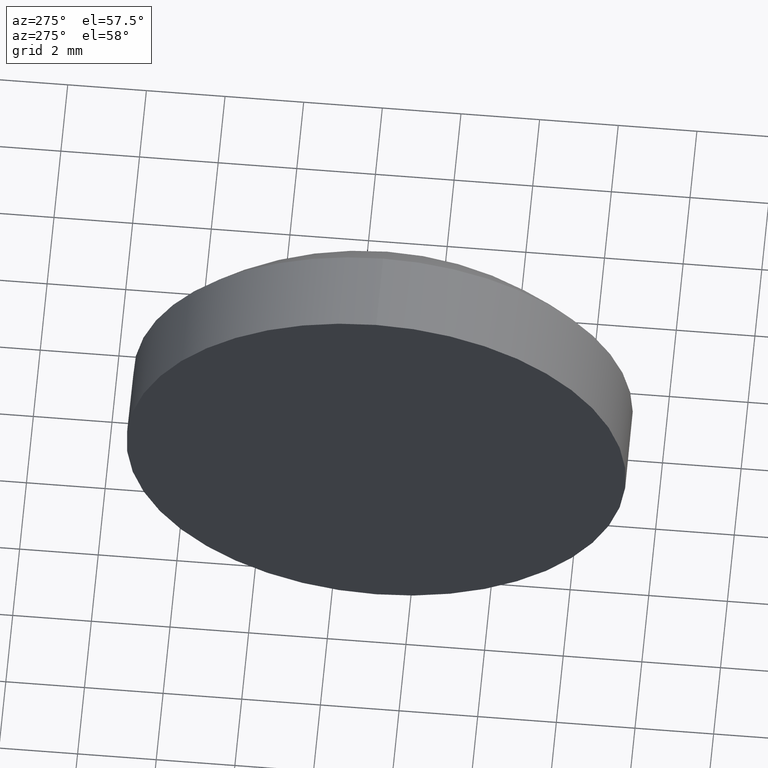
[diagram: clean part render]
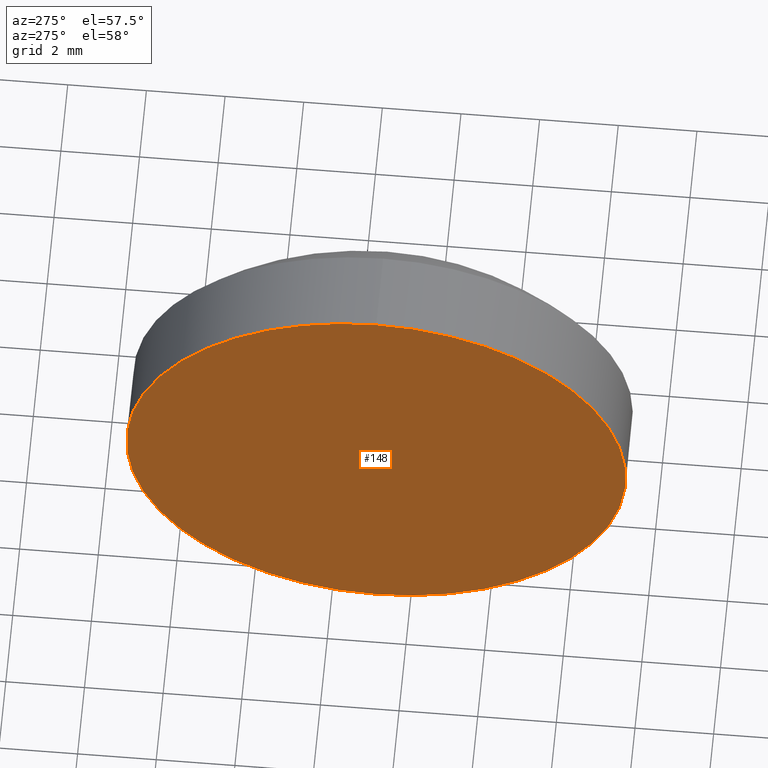
[diagram: same view with one face highlighted and labeled with its STEP entity id]
A machine part, auxiliary view. The second image highlights one B-rep face of the part: STEP entity #148.
In plain terms, the highlighted planar face has unit normal (1, 0, 0).
Its self-contained STEP definition (entity closure, byte-faithful):
#1 = AXIS2_PLACEMENT_3D ( 'NONE', #114, #92, #142 ) ;
#2 = FACE_OUTER_BOUND ( 'NONE', #86, .T. ) ;
#5 = DIRECTION ( 'NONE',  ( 1.000000000000000000, 0.0000000000000000000, 0.0000000000000000000 ) ) ;
#48 = CARTESIAN_POINT ( 'NONE',  ( 397.2579511298699800, 142.8674605340740400, 6.350000000000022700 ) ) ;
#75 = EDGE_CURVE ( 'NONE', #89, #103, #134, .T. ) ;
#79 = CARTESIAN_POINT ( 'NONE',  ( 397.2579511298699800, 142.8674605340740400, 0.0000000000000000000 ) ) ;
#86 = EDGE_LOOP ( 'NONE', ( #168, #124 ) ) ;
#89 = VERTEX_POINT ( 'NONE', #164 ) ;
#92 = DIRECTION ( 'NONE',  ( -1.000000000000000000, -0.0000000000000000000, -0.0000000000000000000 ) ) ;
#103 = VERTEX_POINT ( 'NONE', #48 ) ;
#111 = EDGE_CURVE ( 'NONE', #103, #89, #151, .T. ) ;
#113 = DIRECTION ( 'NONE',  ( 0.0000000000000000000, 0.0000000000000000000, -1.000000000000000000 ) ) ;
#114 = CARTESIAN_POINT ( 'NONE',  ( 397.2579511298699800, 142.8674605340740400, 0.0000000000000000000 ) ) ;
#115 = DIRECTION ( 'NONE',  ( -1.000000000000000000, -0.0000000000000000000, -0.0000000000000000000 ) ) ;
#124 = ORIENTED_EDGE ( 'NONE', *, *, #75, .T. ) ;
#134 = CIRCLE ( 'NONE', #1, 6.350000000000022700 ) ;
#142 = DIRECTION ( 'NONE',  ( 0.0000000000000000000, 0.0000000000000000000, 1.000000000000000000 ) ) ;
#148 = ADVANCED_FACE ( 'NONE', ( #2 ), #182, .F. ) ;
#151 = CIRCLE ( 'NONE', #160, 6.350000000000022700 ) ;
#160 = AXIS2_PLACEMENT_3D ( 'NONE', #166, #115, #181 ) ;
#164 = CARTESIAN_POINT ( 'NONE',  ( 397.2579511298699800, 142.8674605340740400, -6.350000000000022700 ) ) ;
#166 = CARTESIAN_POINT ( 'NONE',  ( 397.2579511298699800, 142.8674605340740400, 0.0000000000000000000 ) ) ;
#168 = ORIENTED_EDGE ( 'NONE', *, *, #111, .T. ) ;
#173 = AXIS2_PLACEMENT_3D ( 'NONE', #79, #5, #113 ) ;
#181 = DIRECTION ( 'NONE',  ( 0.0000000000000000000, 0.0000000000000000000, 1.000000000000000000 ) ) ;
#182 = PLANE ( 'NONE',  #173 ) ;